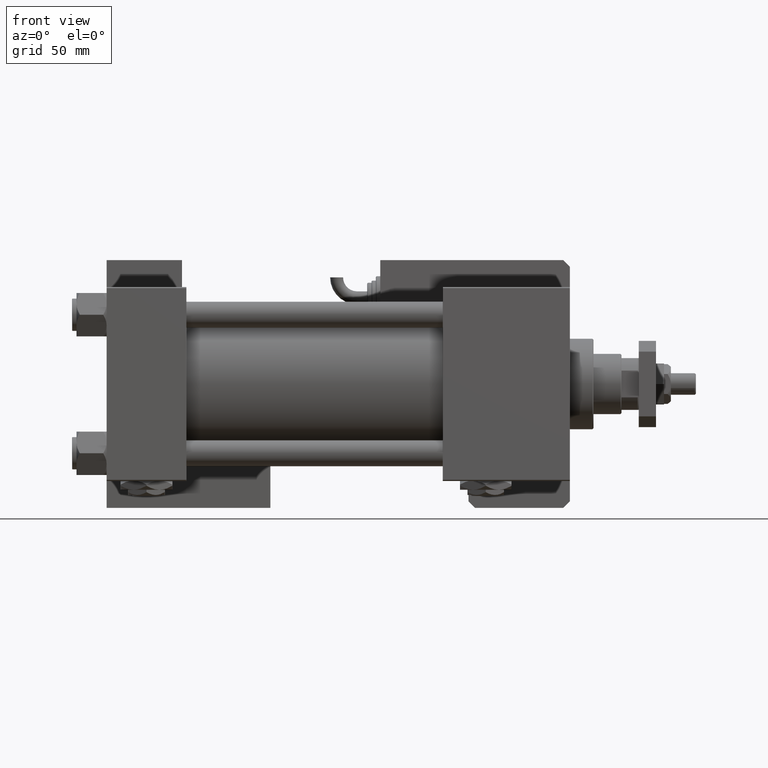
[diagram: clean part render]
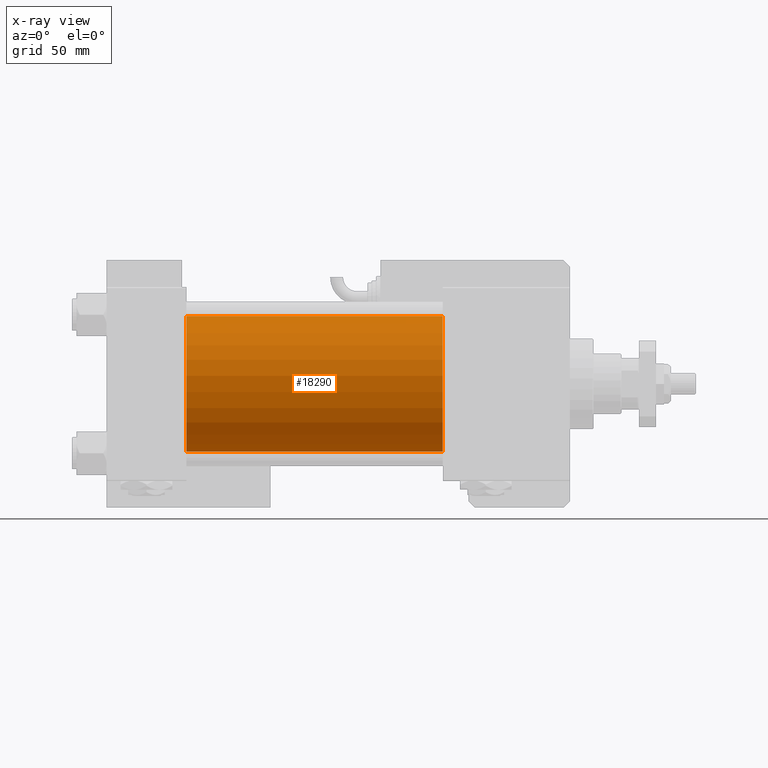
[diagram: x-ray — body ghosted, one internal face saturated and labeled with its STEP entity id]
A machine part, front view, then the same camera in x-ray: the body is ghosted and one INTERNAL B-rep face — a face not visible from any outside direction — is saturated and labeled: STEP entity #18290.
In plain terms, the highlighted cylindrical surface (partial cylindrical patch) has radius 31.5 mm, axis along (-1, -0, -0).
Its self-contained STEP definition (entity closure, byte-faithful):
#404 = ORIENTED_EDGE ( 'NONE', *, *, #8663, .F. ) ;
#2729 = FACE_OUTER_BOUND ( 'NONE', #18328, .T. ) ;
#3016 = CARTESIAN_POINT ( 'NONE',  ( 156.0000000000000000, -2.602085213965210642E-15, 0.000000000000000000 ) ) ;
#6130 = ORIENTED_EDGE ( 'NONE', *, *, #14785, .T. ) ;
#7332 = AXIS2_PLACEMENT_3D ( 'NONE', #16499, #11829, #11249 ) ;
#8029 = ORIENTED_EDGE ( 'NONE', *, *, #17367, .F. ) ;
#8663 = EDGE_CURVE ( 'NONE', #48043, #35354, #21771, .T. ) ;
#11249 = DIRECTION ( 'NONE',  ( 0.000000000000000000, 0.000000000000000000, -1.000000000000000000 ) ) ;
#11819 = CARTESIAN_POINT ( 'NONE',  ( 37.00000000000000000, 1.255552203348951850E-15, -31.50000000000000000 ) ) ;
#11829 = DIRECTION ( 'NONE',  ( 1.000000000000000000, 0.000000000000000000, 0.000000000000000000 ) ) ;
#14785 = EDGE_CURVE ( 'NONE', #33823, #16528, #25038, .T. ) ;
#15914 = DIRECTION ( 'NONE',  ( 0.000000000000000000, 0.000000000000000000, -1.000000000000000000 ) ) ;
#16499 = CARTESIAN_POINT ( 'NONE',  ( 37.00000000000000000, -2.602085213965210642E-15, 0.000000000000000000 ) ) ;
#16502 = DIRECTION ( 'NONE',  ( -1.000000000000000000, -0.000000000000000000, -0.000000000000000000 ) ) ;
#16528 = VERTEX_POINT ( 'NONE', #11819 ) ;
#17367 = EDGE_CURVE ( 'NONE', #35354, #16528, #32624, .T. ) ;
#18290 = ADVANCED_FACE ( 'NONE', ( #2729 ), #42361, .F. ) ;
#18316 = CARTESIAN_POINT ( 'NONE',  ( 156.0000000000000000, -2.602085213965210642E-15, 31.50000000000000000 ) ) ;
#18328 = EDGE_LOOP ( 'NONE', ( #49674, #6130, #8029, #404 ) ) ;
#21666 = CIRCLE ( 'NONE', #54463, 31.50000000000000000 ) ;
#21771 = LINE ( 'NONE', #39987, #55965 ) ;
#24416 = EDGE_CURVE ( 'NONE', #48043, #33823, #21666, .T. ) ;
#25038 = LINE ( 'NONE', #47333, #41941 ) ;
#27037 = AXIS2_PLACEMENT_3D ( 'NONE', #3016, #16502, #34418 ) ;
#28252 = DIRECTION ( 'NONE',  ( 1.000000000000000000, 0.000000000000000000, 0.000000000000000000 ) ) ;
#32624 = CIRCLE ( 'NONE', #7332, 31.50000000000000000 ) ;
#33823 = VERTEX_POINT ( 'NONE', #45746 ) ;
#34418 = DIRECTION ( 'NONE',  ( 0.000000000000000000, 0.000000000000000000, 1.000000000000000000 ) ) ;
#35354 = VERTEX_POINT ( 'NONE', #57844 ) ;
#37653 = CARTESIAN_POINT ( 'NONE',  ( 156.0000000000000000, -2.602085213965210642E-15, 0.000000000000000000 ) ) ;
#39987 = CARTESIAN_POINT ( 'NONE',  ( 156.0000000000000000, -2.602085213965210642E-15, 31.50000000000000000 ) ) ;
#40276 = DIRECTION ( 'NONE',  ( -1.000000000000000000, -0.000000000000000000, -0.000000000000000000 ) ) ;
#41941 = VECTOR ( 'NONE', #52599, 1000.000000000000000 ) ;
#42361 = CYLINDRICAL_SURFACE ( 'NONE', #27037, 31.50000000000000000 ) ;
#45746 = CARTESIAN_POINT ( 'NONE',  ( 156.0000000000000000, 1.255552203348951850E-15, -31.50000000000000000 ) ) ;
#47333 = CARTESIAN_POINT ( 'NONE',  ( 156.0000000000000000, 1.255552203348951850E-15, -31.50000000000000000 ) ) ;
#48043 = VERTEX_POINT ( 'NONE', #18316 ) ;
#49674 = ORIENTED_EDGE ( 'NONE', *, *, #24416, .T. ) ;
#52599 = DIRECTION ( 'NONE',  ( -1.000000000000000000, -0.000000000000000000, -0.000000000000000000 ) ) ;
#54463 = AXIS2_PLACEMENT_3D ( 'NONE', #37653, #28252, #15914 ) ;
#55965 = VECTOR ( 'NONE', #40276, 1000.000000000000000 ) ;
#57844 = CARTESIAN_POINT ( 'NONE',  ( 37.00000000000000000, -2.602085213965210642E-15, 31.50000000000000000 ) ) ;